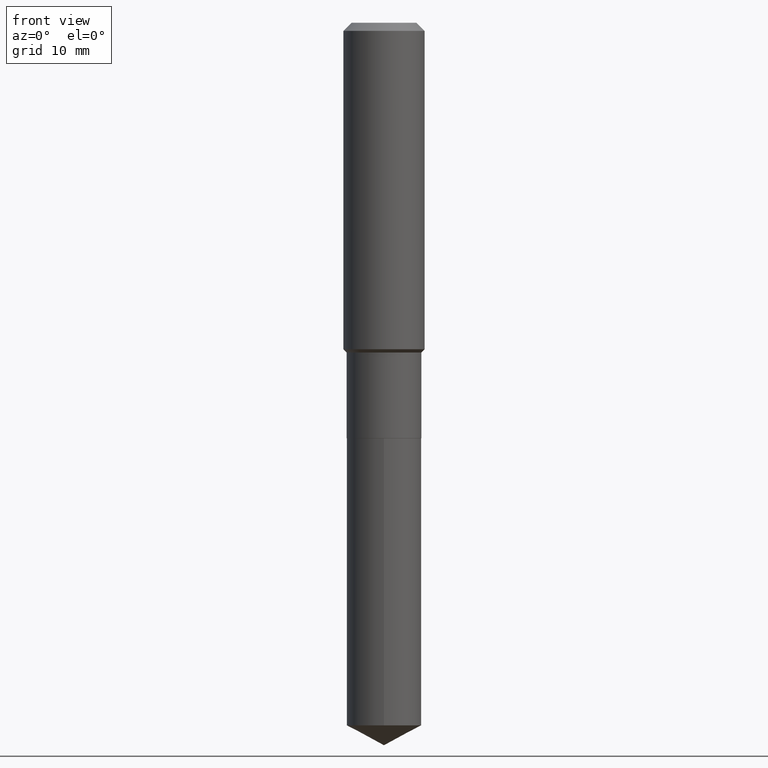
[diagram: clean part render]
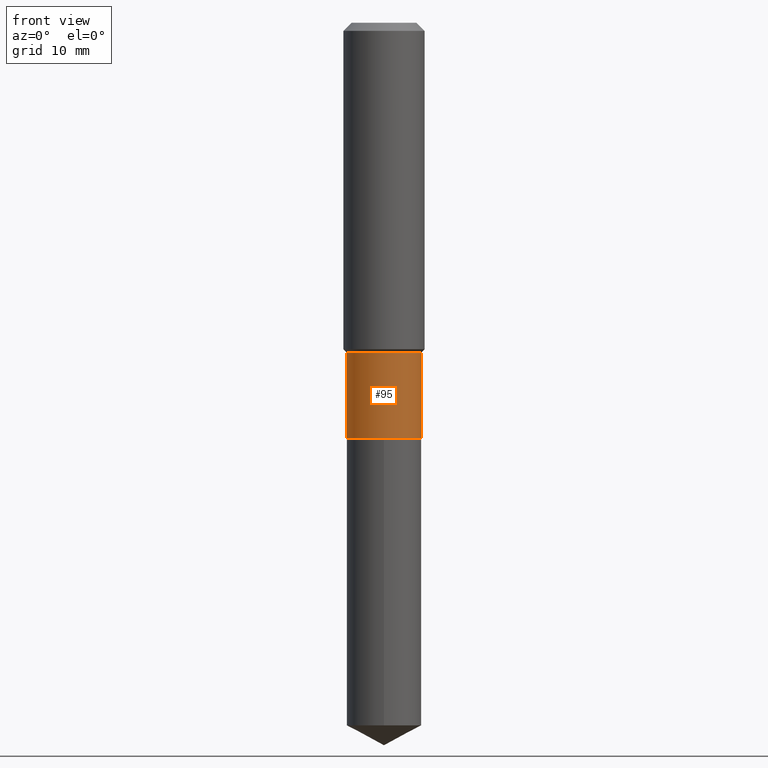
[diagram: same view with one face highlighted and labeled with its STEP entity id]
A machine part, front view. The second image highlights one B-rep face of the part: STEP entity #95.
In plain terms, the highlighted cylindrical surface (partial cylindrical patch) has radius 4.5999 mm, axis along (-0, 0, 1).
Its self-contained STEP definition (entity closure, byte-faithful):
#11 = EDGE_CURVE ( 'NONE', #314, #201, #87, .T. ) ;
#35 = AXIS2_PLACEMENT_3D ( 'NONE', #358, #289, #93 ) ;
#39 = LINE ( 'NONE', #266, #140 ) ;
#55 = ORIENTED_EDGE ( 'NONE', *, *, #172, .T. ) ;
#78 = DIRECTION ( 'NONE',  ( -2.445468806185136597E-29, 3.491481338843145583E-15, 1.000000000000000000 ) ) ;
#87 = CIRCLE ( 'NONE', #35, 0.1810999999999999832 ) ;
#92 = EDGE_LOOP ( 'NONE', ( #366, #144, #55, #317 ) ) ;
#93 = DIRECTION ( 'NONE',  ( 1.000000000000000000, -6.982962677686267499E-15, 0.000000000000000000 ) ) ;
#95 = ADVANCED_FACE ( 'NONE', ( #264 ), #229, .T. ) ;
#140 = VECTOR ( 'NONE', #301, 39.37007874015748143 ) ;
#142 = DIRECTION ( 'NONE',  ( -2.445468806185136597E-29, 3.491481338843145583E-15, 1.000000000000000000 ) ) ;
#144 = ORIENTED_EDGE ( 'NONE', *, *, #11, .T. ) ;
#160 = AXIS2_PLACEMENT_3D ( 'NONE', #183, #142, #411 ) ;
#169 = AXIS2_PLACEMENT_3D ( 'NONE', #231, #78, #459 ) ;
#172 = EDGE_CURVE ( 'NONE', #201, #374, #270, .T. ) ;
#183 = CARTESIAN_POINT ( 'NONE',  ( 3.910793714851269512E-29, -5.583576957077957107E-15, -1.599199999999999733 ) ) ;
#201 = VERTEX_POINT ( 'NONE', #300 ) ;
#210 = CIRCLE ( 'NONE', #160, 0.1810999999999999832 ) ;
#228 = VECTOR ( 'NONE', #298, 39.37007874015748143 ) ;
#229 = CYLINDRICAL_SURFACE ( 'NONE', #169, 0.1810999999999999832 ) ;
#231 = CARTESIAN_POINT ( 'NONE',  ( 0.000000000000000000, 0.000000000000000000, 0.000000000000000000 ) ) ;
#235 = CARTESIAN_POINT ( 'NONE',  ( -0.1810999999999999832, -5.023012181095790067E-15, -2.015199999999999658 ) ) ;
#248 = CARTESIAN_POINT ( 'NONE',  ( -0.1810999999999999832, -5.023012181095790067E-15, -1.599199999999999733 ) ) ;
#264 = FACE_OUTER_BOUND ( 'NONE', #92, .T. ) ;
#266 = CARTESIAN_POINT ( 'NONE',  ( -0.1810999999999999832, 1.286792894461541317E-15, -8.908191448451633036E-30 ) ) ;
#270 = LINE ( 'NONE', #339, #228 ) ;
#281 = CARTESIAN_POINT ( 'NONE',  ( 0.1810999999999999832, -6.848191498006940046E-15, -1.599199999999999733 ) ) ;
#289 = DIRECTION ( 'NONE',  ( -2.445468806185136597E-29, 3.491481338843145583E-15, 1.000000000000000000 ) ) ;
#298 = DIRECTION ( 'NONE',  ( -2.445468806185136877E-29, 3.491481338843145188E-15, 1.000000000000000000 ) ) ;
#300 = CARTESIAN_POINT ( 'NONE',  ( 0.1810999999999999832, -8.300647734965688602E-15, -2.015199999999999658 ) ) ;
#301 = DIRECTION ( 'NONE',  ( -2.445468806185136877E-29, 3.491481338843145188E-15, 1.000000000000000000 ) ) ;
#305 = EDGE_CURVE ( 'NONE', #314, #465, #39, .T. ) ;
#314 = VERTEX_POINT ( 'NONE', #235 ) ;
#317 = ORIENTED_EDGE ( 'NONE', *, *, #382, .F. ) ;
#339 = CARTESIAN_POINT ( 'NONE',  ( 0.1810999999999999832, -1.264614540928982742E-15, 8.830756140966438813E-30 ) ) ;
#358 = CARTESIAN_POINT ( 'NONE',  ( 4.928108738224286960E-29, -7.036033194036706451E-15, -2.015199999999999658 ) ) ;
#366 = ORIENTED_EDGE ( 'NONE', *, *, #305, .F. ) ;
#374 = VERTEX_POINT ( 'NONE', #281 ) ;
#382 = EDGE_CURVE ( 'NONE', #465, #374, #210, .T. ) ;
#411 = DIRECTION ( 'NONE',  ( 1.000000000000000000, -6.982962677686267499E-15, 0.000000000000000000 ) ) ;
#459 = DIRECTION ( 'NONE',  ( 1.000000000000000000, -6.982962677686266711E-15, 4.876176775795935793E-29 ) ) ;
#465 = VERTEX_POINT ( 'NONE', #248 ) ;